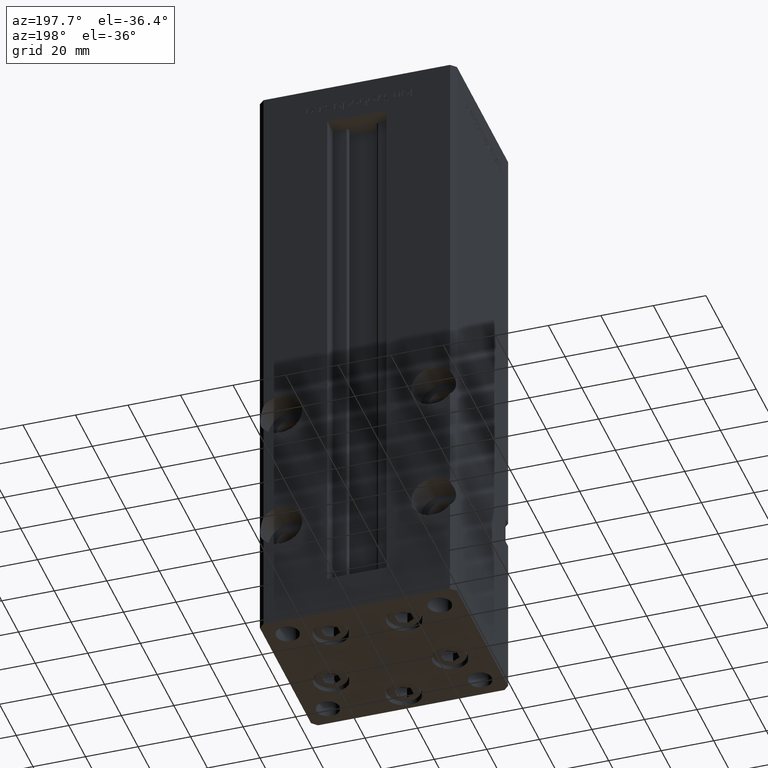
[diagram: clean part render]
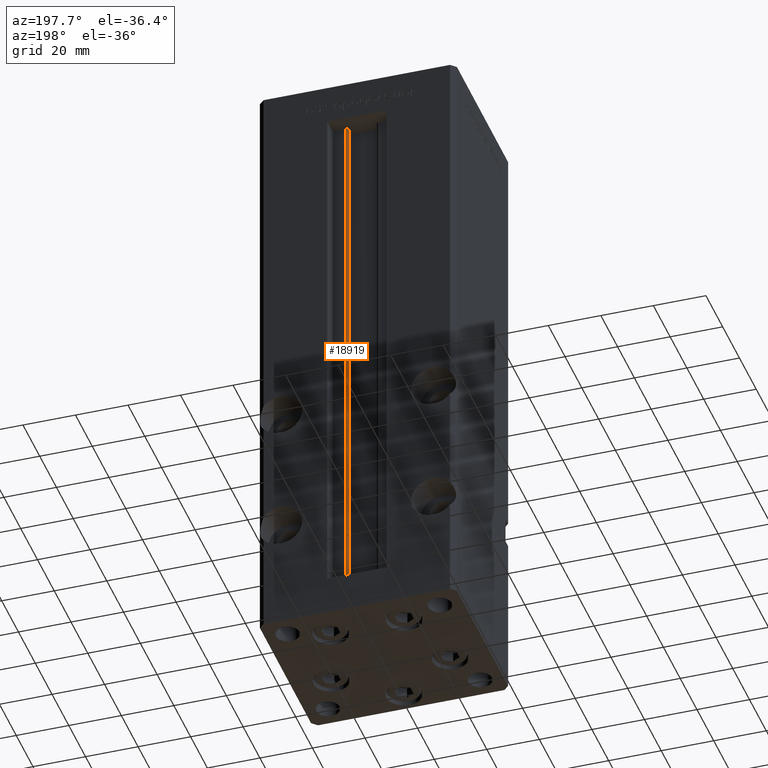
[diagram: same view with one face highlighted and labeled with its STEP entity id]
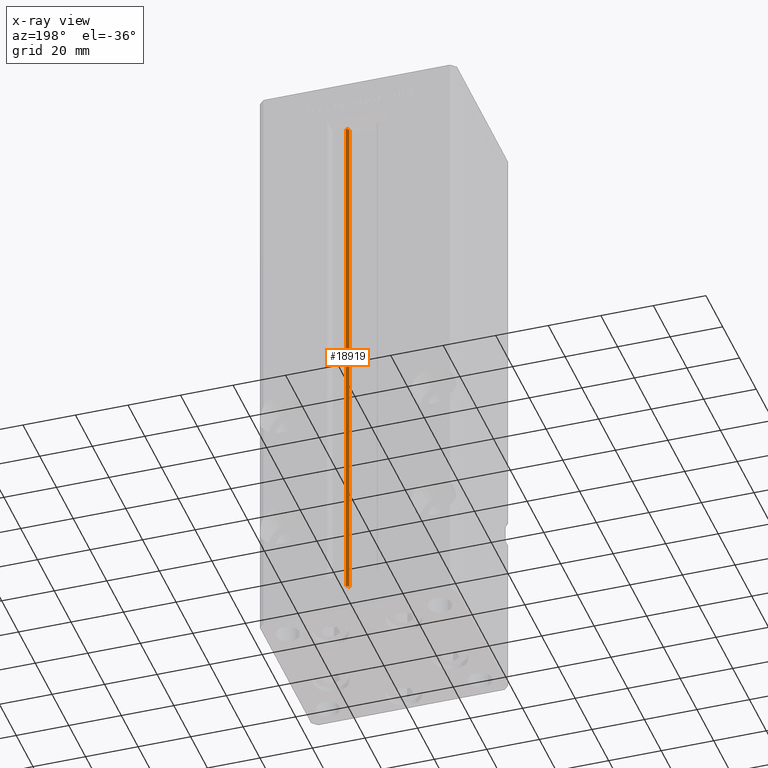
[diagram: x-ray of the same camera — body ghosted, the highlighted face saturated]
A machine part, auxiliary view. The second image highlights one B-rep face of the part: STEP entity #18919.
The next image is the same camera in x-ray: the body ghosted, the highlighted face saturated — about 0% of this face is hidden behind the body in this view.
In plain terms, the highlighted cylindrical surface (edge-blend (fillet) strip) has radius 0.9333 mm, axis along (0, 0, 1).
Its self-contained STEP definition (entity closure, byte-faithful):
#3201 = CIRCLE ( 'NONE', #45228, 0.9333333333340008142 ) ;
#4240 = CARTESIAN_POINT ( 'NONE',  ( 6.183333333333980164, 25.06666666666599852, 206.0000000000000000 ) ) ;
#6548 = VERTEX_POINT ( 'NONE', #51163 ) ;
#8833 = DIRECTION ( 'NONE',  ( -0.000000000000000000, -0.000000000000000000, 1.000000000000000000 ) ) ;
#9477 = DIRECTION ( 'NONE',  ( -0.000000000000000000, -0.000000000000000000, 1.000000000000000000 ) ) ;
#10079 = AXIS2_PLACEMENT_3D ( 'NONE', #46325, #9477, #50641 ) ;
#11661 = VERTEX_POINT ( 'NONE', #20921 ) ;
#12605 = CARTESIAN_POINT ( 'NONE',  ( 6.183333333333980164, 26.00000000000000000, 0.000000000000000000 ) ) ;
#13510 = FACE_OUTER_BOUND ( 'NONE', #20447, .T. ) ;
#13988 = CARTESIAN_POINT ( 'NONE',  ( 5.375042956467926736, 24.59999999999899245, 206.0000000000000000 ) ) ;
#14528 = ORIENTED_EDGE ( 'NONE', *, *, #16990, .T. ) ;
#16990 = EDGE_CURVE ( 'NONE', #30460, #11661, #3201, .T. ) ;
#18919 = ADVANCED_FACE ( 'NONE', ( #13510 ), #29918, .T. ) ;
#20447 = EDGE_LOOP ( 'NONE', ( #39799, #35781, #38632, #14528 ) ) ;
#20921 = CARTESIAN_POINT ( 'NONE',  ( 6.183333333333980164, 26.00000000000000000, 206.0000000000000000 ) ) ;
#21231 = EDGE_CURVE ( 'NONE', #6548, #41740, #29799, .T. ) ;
#23333 = DIRECTION ( 'NONE',  ( 1.000000000000000000, 0.000000000000000000, 0.000000000000000000 ) ) ;
#25132 = DIRECTION ( 'NONE',  ( -0.000000000000000000, -0.000000000000000000, 1.000000000000000000 ) ) ;
#25562 = CARTESIAN_POINT ( 'NONE',  ( 6.183333333333980164, 26.00000000000000000, 0.000000000000000000 ) ) ;
#29799 = CIRCLE ( 'NONE', #50396, 0.9333333333340008142 ) ;
#29918 = CYLINDRICAL_SURFACE ( 'NONE', #10079, 0.9333333333340008142 ) ;
#30460 = VERTEX_POINT ( 'NONE', #13988 ) ;
#32000 = DIRECTION ( 'NONE',  ( 1.000000000000000000, 0.000000000000000000, 0.000000000000000000 ) ) ;
#33200 = LINE ( 'NONE', #49356, #39345 ) ;
#35242 = EDGE_CURVE ( 'NONE', #41740, #11661, #37880, .T. ) ;
#35781 = ORIENTED_EDGE ( 'NONE', *, *, #21231, .F. ) ;
#37880 = LINE ( 'NONE', #12605, #52429 ) ;
#38632 = ORIENTED_EDGE ( 'NONE', *, *, #46538, .T. ) ;
#39345 = VECTOR ( 'NONE', #25132, 1000.000000000000000 ) ;
#39799 = ORIENTED_EDGE ( 'NONE', *, *, #35242, .F. ) ;
#41740 = VERTEX_POINT ( 'NONE', #25562 ) ;
#44363 = DIRECTION ( 'NONE',  ( 0.000000000000000000, 0.000000000000000000, -1.000000000000000000 ) ) ;
#45228 = AXIS2_PLACEMENT_3D ( 'NONE', #4240, #44363, #32000 ) ;
#46325 = CARTESIAN_POINT ( 'NONE',  ( 6.183333333333980164, 25.06666666666599852, 0.000000000000000000 ) ) ;
#46538 = EDGE_CURVE ( 'NONE', #6548, #30460, #33200, .T. ) ;
#46750 = CARTESIAN_POINT ( 'NONE',  ( 6.183333333333980164, 25.06666666666599852, 0.000000000000000000 ) ) ;
#47013 = DIRECTION ( 'NONE',  ( -0.000000000000000000, -0.000000000000000000, -1.000000000000000000 ) ) ;
#49356 = CARTESIAN_POINT ( 'NONE',  ( 5.375042956467928512, 24.59999999999899245, 0.000000000000000000 ) ) ;
#50396 = AXIS2_PLACEMENT_3D ( 'NONE', #46750, #47013, #23333 ) ;
#50641 = DIRECTION ( 'NONE',  ( 1.000000000000000000, 0.000000000000000000, 0.000000000000000000 ) ) ;
#51163 = CARTESIAN_POINT ( 'NONE',  ( 5.375042956467928512, 24.59999999999899245, 0.000000000000000000 ) ) ;
#52429 = VECTOR ( 'NONE', #8833, 1000.000000000000000 ) ;